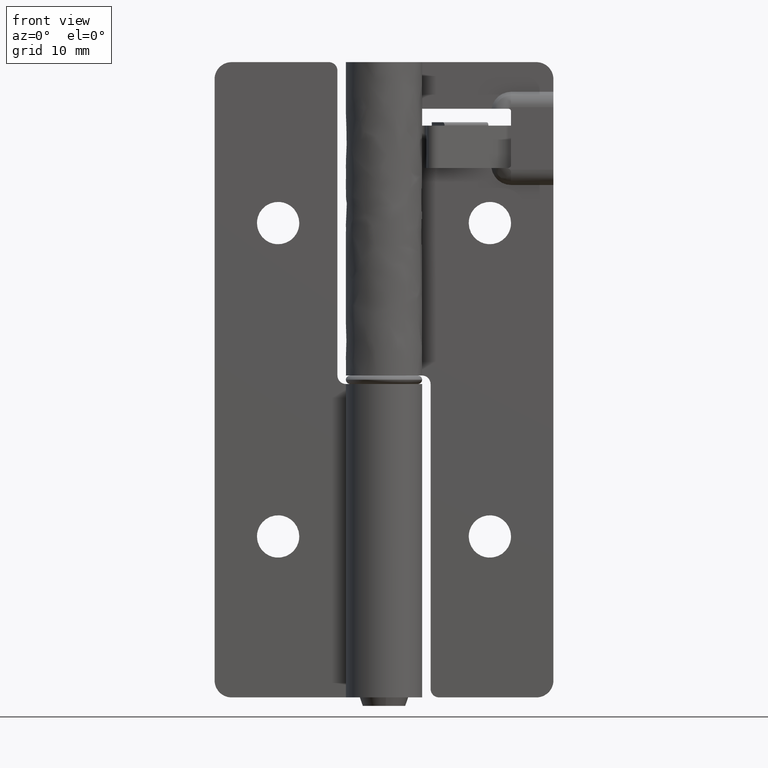
[diagram: clean part render]
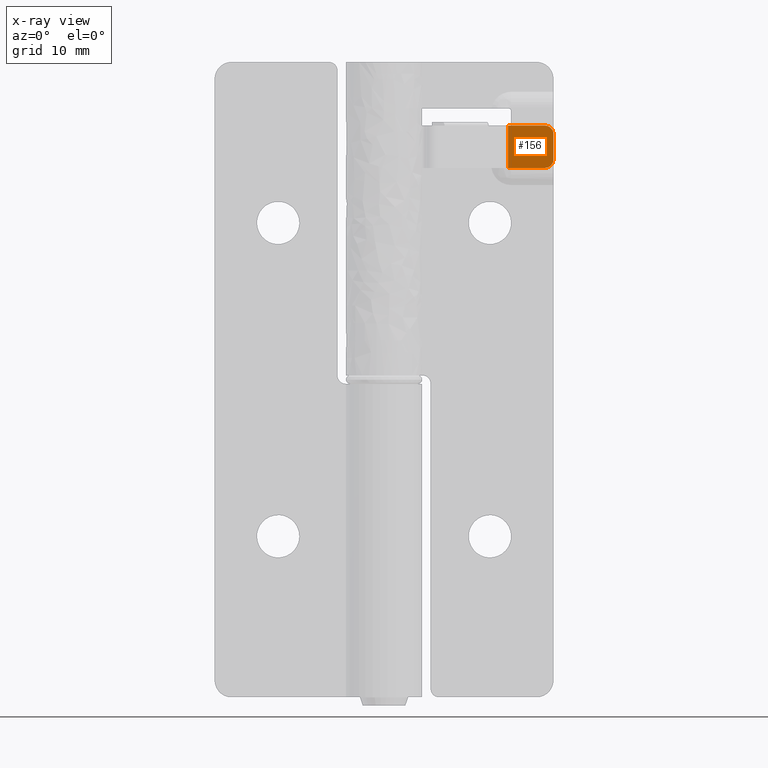
[diagram: x-ray — body ghosted, one internal face saturated and labeled with its STEP entity id]
A machine part, front view, then the same camera in x-ray: the body is ghosted and one INTERNAL B-rep face — a face not visible from any outside direction — is saturated and labeled: STEP entity #156.
In plain terms, the highlighted face is a freeform B-spline surface patch.
Its self-contained STEP definition (entity closure, byte-faithful):
#77=CARTESIAN_POINT('',(19.999999999984951,3.499999999976641,66.499999999999105));
#78=VERTEX_POINT('',#77);
#84=CARTESIAN_POINT('',(19.999999999984951,3.499999999976641,63.499999999999112));
#85=VERTEX_POINT('',#84);
#86=CARTESIAN_POINT('',(19.999999999984951,3.499999999976641,66.499999999999105));
#87=CARTESIAN_POINT('',(19.999999999984951,3.499999999976641,63.499999999999112));
#88=QUASI_UNIFORM_CURVE('',1,(#86,#87),.UNSPECIFIED.,.F.,.U.);
#89=EDGE_CURVE('',#78,#85,#88,.T.);
#99=CARTESIAN_POINT('',(14.386001383541011,3.499999999976641,62.250250009690070));
#100=CARTESIAN_POINT('',(14.386001383541011,3.499999999976641,67.749750124418597));
#101=CARTESIAN_POINT('',(20.267078785743500,3.499999999976641,62.250250009690070));
#102=CARTESIAN_POINT('',(20.267078785743500,3.499999999976641,67.749750124418597));
#103=B_SPLINE_SURFACE_WITH_KNOTS('',1,1,((#99,#101),(#100,#102)),.UNSPECIFIED.,.F.,.F.,.U.,(2,2),(2,2),(0.0,5.499500114728527),(0.0,5.881077402202491),.UNSPECIFIED.);
#104=ORIENTED_EDGE('',*,*,#89,.F.);
#105=CARTESIAN_POINT('',(18.999999999984951,3.499999999976641,67.499999999999105));
#106=VERTEX_POINT('',#105);
#107=CARTESIAN_POINT('',(19.999999999984951,3.499999999976641,66.499999999999105));
#108=CARTESIAN_POINT('',(19.999999999984951,3.499999999976641,67.499999999999105));
#109=CARTESIAN_POINT('',(18.999999999984951,3.499999999976641,67.499999999999105));
#117=(BOUNDED_CURVE()B_SPLINE_CURVE(2,(#107,#108,#109),.UNSPECIFIED.,.F.,.U.)CURVE()GEOMETRIC_REPRESENTATION_ITEM()QUASI_UNIFORM_CURVE()RATIONAL_B_SPLINE_CURVE((1.0,0.707106781186548,1.0))REPRESENTATION_ITEM(''));
#118=EDGE_CURVE('',#78,#106,#117,.T.);
#119=ORIENTED_EDGE('',*,*,#118,.T.);
#120=CARTESIAN_POINT('',(14.653080025883980,3.499999999976641,67.499999999999105));
#121=VERTEX_POINT('',#120);
#122=CARTESIAN_POINT('',(14.653080025883980,3.499999999976641,67.499999999999105));
#123=CARTESIAN_POINT('',(18.999999999984951,3.499999999976641,67.499999999999105));
#124=QUASI_UNIFORM_CURVE('',1,(#122,#123),.UNSPECIFIED.,.F.,.U.);
#125=EDGE_CURVE('',#121,#106,#124,.T.);
#126=ORIENTED_EDGE('',*,*,#125,.F.);
#127=CARTESIAN_POINT('',(14.653080025883980,3.499999999976641,62.499999999999098));
#128=VERTEX_POINT('',#127);
#129=CARTESIAN_POINT('',(14.653080025883980,3.499999999976641,67.499999999999105));
#130=CARTESIAN_POINT('',(14.653080025883980,3.499999999976641,62.499999999999098));
#131=QUASI_UNIFORM_CURVE('',1,(#129,#130),.UNSPECIFIED.,.F.,.U.);
#132=EDGE_CURVE('',#121,#128,#131,.T.);
#133=ORIENTED_EDGE('',*,*,#132,.T.);
#134=CARTESIAN_POINT('',(18.999999999984951,3.499999999976641,62.499999999999098));
#135=VERTEX_POINT('',#134);
#136=CARTESIAN_POINT('',(14.653080025883980,3.499999999976641,62.499999999999098));
#137=CARTESIAN_POINT('',(18.999999999984951,3.499999999976641,62.499999999999098));
#138=QUASI_UNIFORM_CURVE('',1,(#136,#137),.UNSPECIFIED.,.F.,.U.);
#139=EDGE_CURVE('',#128,#135,#138,.T.);
#140=ORIENTED_EDGE('',*,*,#139,.T.);
#141=CARTESIAN_POINT('',(18.999999999984951,3.499999999976641,62.499999999999112));
#142=CARTESIAN_POINT('',(19.999999999984951,3.499999999976641,62.499999999999105));
#143=CARTESIAN_POINT('',(19.999999999984951,3.499999999976641,63.499999999999112));
#151=(BOUNDED_CURVE()B_SPLINE_CURVE(2,(#141,#142,#143),.UNSPECIFIED.,.F.,.U.)CURVE()GEOMETRIC_REPRESENTATION_ITEM()QUASI_UNIFORM_CURVE()RATIONAL_B_SPLINE_CURVE((1.0,0.707106781186548,1.0))REPRESENTATION_ITEM(''));
#152=EDGE_CURVE('',#135,#85,#151,.T.);
#153=ORIENTED_EDGE('',*,*,#152,.T.);
#154=EDGE_LOOP('',(#104,#119,#126,#133,#140,#153));
#155=FACE_OUTER_BOUND('',#154,.T.);
#156=ADVANCED_FACE('',(#155),#103,.F.);